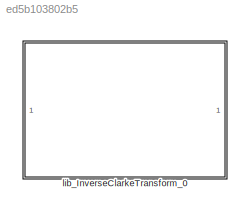
MODEL slx_ed5b103802b5
KIND library
CONFIG AbsTol = auto
CONFIG EnableMultiTasking = off
CONFIG FixedStep = auto
CONFIG MaxStep = auto
CONFIG MinStep = auto
CONFIG RelTol = 1e-3
CONFIG SampleTimeConstraint = Unconstrained
CONFIG SolverName = VariableStepAuto
CONFIG StartTime = 0.0
CONFIG StopTime = 10.0
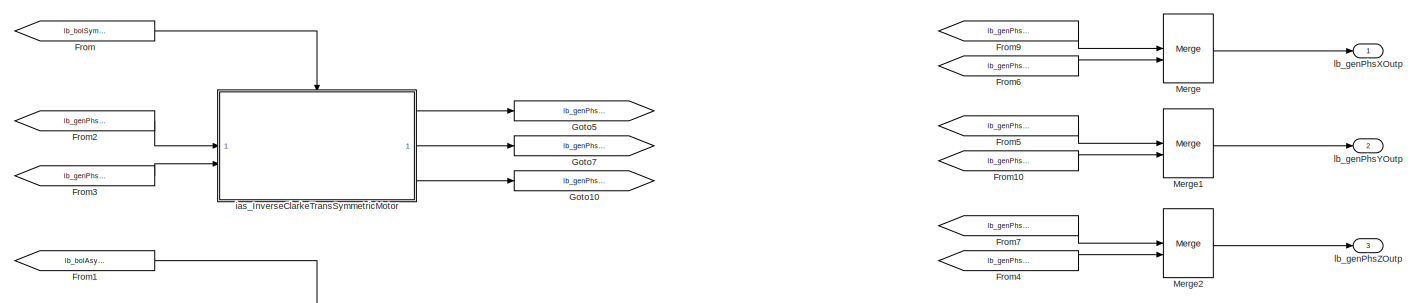
[diagram: lib_InverseClarkeTransform_0 - part 1/3, middle right region]
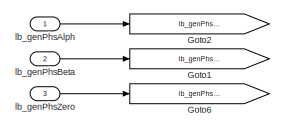
[diagram: lib_InverseClarkeTransform_0 - part 2/3, top left region]
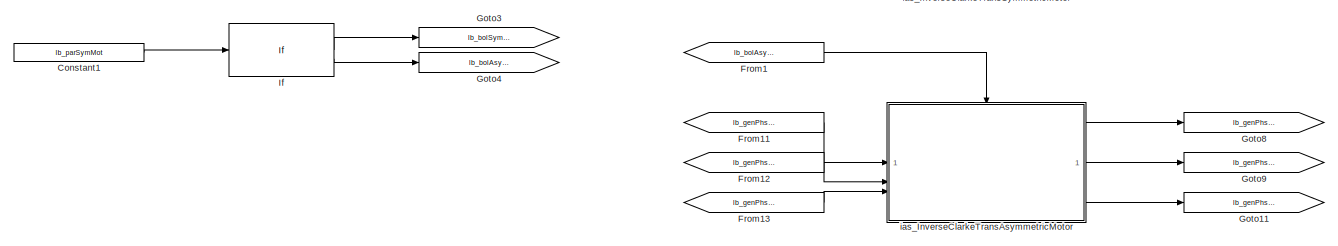
[diagram: lib_InverseClarkeTransform_0 - part 3/3, bottom center region]
BLOCK [SubSystem] lib_InverseClarkeTransform_0
  VariantControl = ClarkTransf_MIL_flo
BLOCK [Constant] lib_InverseClarkeTransform_0/Constant1
  OutDataTypeStr = boolean
  Value = lb_parSymMot
BLOCK [From] lib_InverseClarkeTransform_0/From
  GotoTag = lb_bolSymMot
BLOCK [From] lib_InverseClarkeTransform_0/From1
  GotoTag = lb_bolAsymMot
BLOCK [From] lib_InverseClarkeTransform_0/From10
  GotoTag = lb_genPhsYAsym
BLOCK [From] lib_InverseClarkeTransform_0/From11
  GotoTag = lb_genPhsAlph
BLOCK [From] lib_InverseClarkeTransform_0/From12
  GotoTag = lb_genPhsBeta
BLOCK [From] lib_InverseClarkeTransform_0/From13
  GotoTag = lb_genPhsZero
BLOCK [From] lib_InverseClarkeTransform_0/From2
  GotoTag = lb_genPhsAlph
BLOCK [From] lib_InverseClarkeTransform_0/From3
  GotoTag = lb_genPhsBeta
BLOCK [From] lib_InverseClarkeTransform_0/From4
  GotoTag = lb_genPhsZAsym
BLOCK [From] lib_InverseClarkeTransform_0/From5
  GotoTag = lb_genPhsYSym
BLOCK [From] lib_InverseClarkeTransform_0/From6
  GotoTag = lb_genPhsXAsym
BLOCK [From] lib_InverseClarkeTransform_0/From7
  GotoTag = lb_genPhsZSym
BLOCK [From] lib_InverseClarkeTransform_0/From9
  GotoTag = lb_genPhsXSym
BLOCK [Goto] lib_InverseClarkeTransform_0/Goto1
  GotoTag = lb_genPhsBeta
BLOCK [Goto] lib_InverseClarkeTransform_0/Goto10
  GotoTag = lb_genPhsZSym
BLOCK [Goto] lib_InverseClarkeTransform_0/Goto11
  GotoTag = lb_genPhsZAsym
BLOCK [Goto] lib_InverseClarkeTransform_0/Goto2
  GotoTag = lb_genPhsAlph
BLOCK [Goto] lib_InverseClarkeTransform_0/Goto3
  GotoTag = lb_bolSymMot
BLOCK [Goto] lib_InverseClarkeTransform_0/Goto4
  GotoTag = lb_bolAsymMot
BLOCK [Goto] lib_InverseClarkeTransform_0/Goto5
  GotoTag = lb_genPhsXSym
BLOCK [Goto] lib_InverseClarkeTransform_0/Goto6
  GotoTag = lb_genPhsZero
BLOCK [Goto] lib_InverseClarkeTransform_0/Goto7
  GotoTag = lb_genPhsYSym
BLOCK [Goto] lib_InverseClarkeTransform_0/Goto8
  GotoTag = lb_genPhsXAsym
BLOCK [Goto] lib_InverseClarkeTransform_0/Goto9
  GotoTag = lb_genPhsYAsym
BLOCK [If] lib_InverseClarkeTransform_0/If
  IfExpression = u1 == 0
BLOCK [Merge] lib_InverseClarkeTransform_0/Merge
BLOCK [Merge] lib_InverseClarkeTransform_0/Merge1
BLOCK [Merge] lib_InverseClarkeTransform_0/Merge2
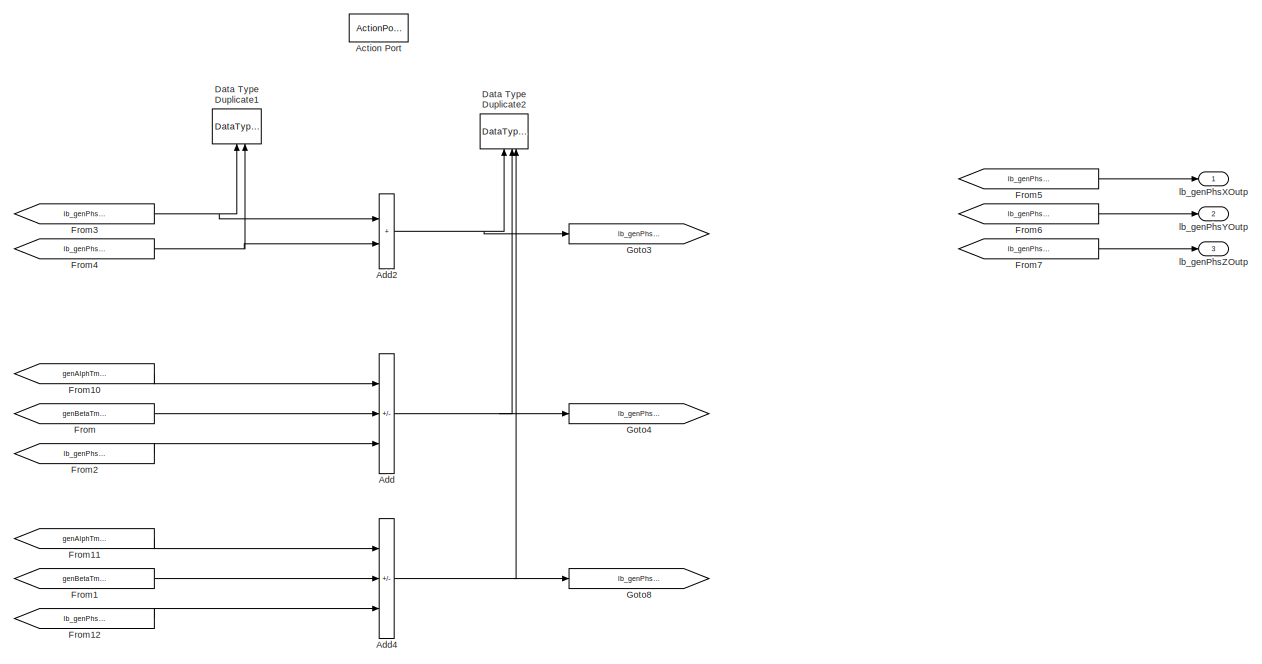
[diagram: lib_InverseClarkeTransform_0/ias_InverseClarkeTransAsymmetricMotor - part 1/2, right side, full height]
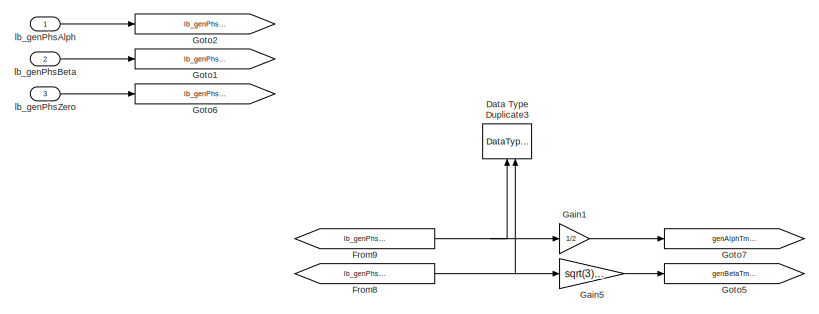
[diagram: lib_InverseClarkeTransform_0/ias_InverseClarkeTransAsymmetricMotor - part 2/2, middle left region]
BLOCK [SubSystem] lib_InverseClarkeTransform_0/ias_InverseClarkeTransAsymmetricMotor
  TreatAsAtomicUnit = on
BLOCK [ActionPort] lib_InverseClarkeTransform_0/ias_InverseClarkeTransAsymmetricMotor/Action Port
BLOCK [Sum] lib_InverseClarkeTransform_0/ias_InverseClarkeTransAsymmetricMotor/Add
  IconShape = rectangular
  InputSameDT = on
  Inputs = -++
  OutDataTypeStr = Inherit: Inherit via back propagation
  SaturateOnIntegerOverflow = on
BLOCK [Sum] lib_InverseClarkeTransform_0/ias_InverseClarkeTransAsymmetricMotor/Add2
  IconShape = rectangular
  InputSameDT = on
  OutDataTypeStr = Inherit: Inherit via back propagation
  SaturateOnIntegerOverflow = on
BLOCK [Sum] lib_InverseClarkeTransform_0/ias_InverseClarkeTransAsymmetricMotor/Add4
  IconShape = rectangular
  InputSameDT = on
  Inputs = --+
  OutDataTypeStr = Inherit: Inherit via back propagation
  SaturateOnIntegerOverflow = on
BLOCK [DataTypeDuplicate] lib_InverseClarkeTransform_0/ias_InverseClarkeTransAsymmetricMotor/Data Type Duplicate1
  NameLocation = right
BLOCK [DataTypeDuplicate] lib_InverseClarkeTransform_0/ias_InverseClarkeTransAsymmetricMotor/Data Type Duplicate2
  NameLocation = right
  NumInputPorts = 3
BLOCK [DataTypeDuplicate] lib_InverseClarkeTransform_0/ias_InverseClarkeTransAsymmetricMotor/Data Type Duplicate3
  NameLocation = right
BLOCK [From] lib_InverseClarkeTransform_0/ias_InverseClarkeTransAsymmetricMotor/From
  GotoTag = genBetaTmpr
BLOCK [From] lib_InverseClarkeTransform_0/ias_InverseClarkeTransAsymmetricMotor/From1
  GotoTag = genBetaTmpr
BLOCK [From] lib_InverseClarkeTransform_0/ias_InverseClarkeTransAsymmetricMotor/From10
  GotoTag = genAlphTmpr
BLOCK [From] lib_InverseClarkeTransform_0/ias_InverseClarkeTransAsymmetricMotor/From11
  GotoTag = genAlphTmpr
BLOCK [From] lib_InverseClarkeTransform_0/ias_InverseClarkeTransAsymmetricMotor/From12
  GotoTag = lb_genPhsZero
BLOCK [From] lib_InverseClarkeTransform_0/ias_InverseClarkeTransAsymmetricMotor/From2
  GotoTag = lb_genPhsZero
BLOCK [From] lib_InverseClarkeTransform_0/ias_InverseClarkeTransAsymmetricMotor/From3
  GotoTag = lb_genPhsAlph
BLOCK [From] lib_InverseClarkeTransform_0/ias_InverseClarkeTransAsymmetricMotor/From4
  GotoTag = lb_genPhsZero
BLOCK [From] lib_InverseClarkeTransform_0/ias_InverseClarkeTransAsymmetricMotor/From5
  GotoTag = lb_genPhsXOutp
BLOCK [From] lib_InverseClarkeTransform_0/ias_InverseClarkeTransAsymmetricMotor/From6
  GotoTag = lb_genPhsYOutp
BLOCK [From] lib_InverseClarkeTransform_0/ias_InverseClarkeTransAsymmetricMotor/From7
  GotoTag = lb_genPhsZOutp
BLOCK [From] lib_InverseClarkeTransform_0/ias_InverseClarkeTransAsymmetricMotor/From8
  GotoTag = lb_genPhsBeta
BLOCK [From] lib_InverseClarkeTransform_0/ias_InverseClarkeTransAsymmetricMotor/From9
  GotoTag = lb_genPhsAlph
BLOCK [Gain] lib_InverseClarkeTransform_0/ias_InverseClarkeTransAsymmetricMotor/Gain1
  Gain = 1/2
  OutDataTypeStr = Inherit: Inherit via back propagation
BLOCK [Gain] lib_InverseClarkeTransform_0/ias_InverseClarkeTransAsymmetricMotor/Gain5
  Gain = sqrt(3)/2
  OutDataTypeStr = Inherit: Inherit via back propagation
  ParamDataTypeStr = Inherit: Inherit from 'Gain'
BLOCK [Goto] lib_InverseClarkeTransform_0/ias_InverseClarkeTransAsymmetricMotor/Goto1
  GotoTag = lb_genPhsBeta
BLOCK [Goto] lib_InverseClarkeTransform_0/ias_InverseClarkeTransAsymmetricMotor/Goto2
  GotoTag = lb_genPhsAlph
BLOCK [Goto] lib_InverseClarkeTransform_0/ias_InverseClarkeTransAsymmetricMotor/Goto3
  GotoTag = lb_genPhsXOutp
BLOCK [Goto] lib_InverseClarkeTransform_0/ias_InverseClarkeTransAsymmetricMotor/Goto4
  GotoTag = lb_genPhsYOutp
BLOCK [Goto] lib_InverseClarkeTransform_0/ias_InverseClarkeTransAsymmetricMotor/Goto5
  GotoTag = genBetaTmpr
BLOCK [Goto] lib_InverseClarkeTransform_0/ias_InverseClarkeTransAsymmetricMotor/Goto6
  GotoTag = lb_genPhsZero
BLOCK [Goto] lib_InverseClarkeTransform_0/ias_InverseClarkeTransAsymmetricMotor/Goto7
  GotoTag = genAlphTmpr
BLOCK [Goto] lib_InverseClarkeTransform_0/ias_InverseClarkeTransAsymmetricMotor/Goto8
  GotoTag = lb_genPhsZOutp
BLOCK [Inport] lib_InverseClarkeTransform_0/ias_InverseClarkeTransAsymmetricMotor/lb_genPhsAlph
BLOCK [Inport] lib_InverseClarkeTransform_0/ias_InverseClarkeTransAsymmetricMotor/lb_genPhsBeta
  Port = 2
BLOCK [Outport] lib_InverseClarkeTransform_0/ias_InverseClarkeTransAsymmetricMotor/lb_genPhsXOutp
  VectorParamsAs1DForOutWhenUnconnected = off
BLOCK [Outport] lib_InverseClarkeTransform_0/ias_InverseClarkeTransAsymmetricMotor/lb_genPhsYOutp
  Port = 2
  VectorParamsAs1DForOutWhenUnconnected = off
BLOCK [Outport] lib_InverseClarkeTransform_0/ias_InverseClarkeTransAsymmetricMotor/lb_genPhsZOutp
  Port = 3
  VectorParamsAs1DForOutWhenUnconnected = off
BLOCK [Inport] lib_InverseClarkeTransform_0/ias_InverseClarkeTransAsymmetricMotor/lb_genPhsZero
  Port = 3
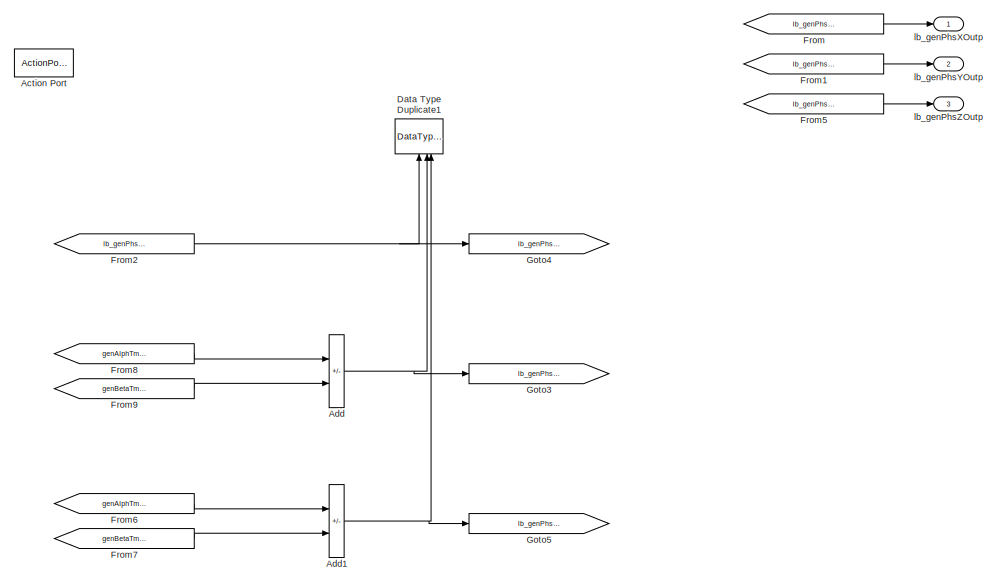
[diagram: lib_InverseClarkeTransform_0/ias_InverseClarkeTransSymmetricMotor - part 1/2, right side, full height]
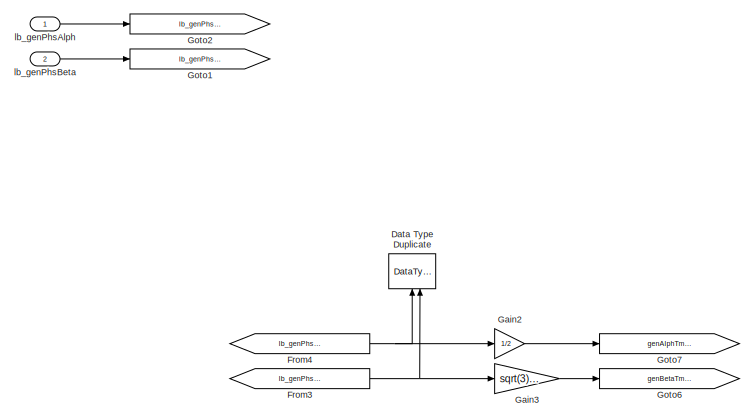
[diagram: lib_InverseClarkeTransform_0/ias_InverseClarkeTransSymmetricMotor - part 2/2, middle left region]
BLOCK [SubSystem] lib_InverseClarkeTransform_0/ias_InverseClarkeTransSymmetricMotor
  TreatAsAtomicUnit = on
BLOCK [ActionPort] lib_InverseClarkeTransform_0/ias_InverseClarkeTransSymmetricMotor/Action Port
BLOCK [Sum] lib_InverseClarkeTransform_0/ias_InverseClarkeTransSymmetricMotor/Add
  IconShape = rectangular
  Inputs = -+
  OutDataTypeStr = Inherit: Inherit via back propagation
BLOCK [Sum] lib_InverseClarkeTransform_0/ias_InverseClarkeTransSymmetricMotor/Add1
  IconShape = rectangular
  Inputs = --
  OutDataTypeStr = Inherit: Inherit via back propagation
BLOCK [DataTypeDuplicate] lib_InverseClarkeTransform_0/ias_InverseClarkeTransSymmetricMotor/Data Type Duplicate
  NameLocation = right
BLOCK [DataTypeDuplicate] lib_InverseClarkeTransform_0/ias_InverseClarkeTransSymmetricMotor/Data Type Duplicate1
  NameLocation = right
  NumInputPorts = 3
BLOCK [From] lib_InverseClarkeTransform_0/ias_InverseClarkeTransSymmetricMotor/From
  GotoTag = lb_genPhsXOutp
BLOCK [From] lib_InverseClarkeTransform_0/ias_InverseClarkeTransSymmetricMotor/From1
  GotoTag = lb_genPhsYOutp
BLOCK [From] lib_InverseClarkeTransform_0/ias_InverseClarkeTransSymmetricMotor/From2
  GotoTag = lb_genPhsAlph
BLOCK [From] lib_InverseClarkeTransform_0/ias_InverseClarkeTransSymmetricMotor/From3
  GotoTag = lb_genPhsBeta
BLOCK [From] lib_InverseClarkeTransform_0/ias_InverseClarkeTransSymmetricMotor/From4
  GotoTag = lb_genPhsAlph
BLOCK [From] lib_InverseClarkeTransform_0/ias_InverseClarkeTransSymmetricMotor/From5
  GotoTag = lb_genPhsZOutp
BLOCK [From] lib_InverseClarkeTransform_0/ias_InverseClarkeTransSymmetricMotor/From6
  GotoTag = genAlphTmpr
BLOCK [From] lib_InverseClarkeTransform_0/ias_InverseClarkeTransSymmetricMotor/From7
  GotoTag = genBetaTmpr
BLOCK [From] lib_InverseClarkeTransform_0/ias_InverseClarkeTransSymmetricMotor/From8
  GotoTag = genAlphTmpr
BLOCK [From] lib_InverseClarkeTransform_0/ias_InverseClarkeTransSymmetricMotor/From9
  GotoTag = genBetaTmpr
BLOCK [Gain] lib_InverseClarkeTransform_0/ias_InverseClarkeTransSymmetricMotor/Gain2
  Gain = 1/2
  OutDataTypeStr = Inherit: Inherit via back propagation
BLOCK [Gain] lib_InverseClarkeTransform_0/ias_InverseClarkeTransSymmetricMotor/Gain3
  Gain = sqrt(3)/2
  OutDataTypeStr = Inherit: Inherit via back propagation
  ParamDataTypeStr = Inherit: Inherit from 'Gain'
BLOCK [Goto] lib_InverseClarkeTransform_0/ias_InverseClarkeTransSymmetricMotor/Goto1
  GotoTag = lb_genPhsBeta
BLOCK [Goto] lib_InverseClarkeTransform_0/ias_InverseClarkeTransSymmetricMotor/Goto2
  GotoTag = lb_genPhsAlph
BLOCK [Goto] lib_InverseClarkeTransform_0/ias_InverseClarkeTransSymmetricMotor/Goto3
  GotoTag = lb_genPhsYOutp
BLOCK [Goto] lib_InverseClarkeTransform_0/ias_InverseClarkeTransSymmetricMotor/Goto4
  GotoTag = lb_genPhsXOutp
BLOCK [Goto] lib_InverseClarkeTransform_0/ias_InverseClarkeTransSymmetricMotor/Goto5
  GotoTag = lb_genPhsZOutp
BLOCK [Goto] lib_InverseClarkeTransform_0/ias_InverseClarkeTransSymmetricMotor/Goto6
  GotoTag = genBetaTmpr
BLOCK [Goto] lib_InverseClarkeTransform_0/ias_InverseClarkeTransSymmetricMotor/Goto7
  GotoTag = genAlphTmpr
BLOCK [Inport] lib_InverseClarkeTransform_0/ias_InverseClarkeTransSymmetricMotor/lb_genPhsAlph
BLOCK [Inport] lib_InverseClarkeTransform_0/ias_InverseClarkeTransSymmetricMotor/lb_genPhsBeta
  Port = 2
BLOCK [Outport] lib_InverseClarkeTransform_0/ias_InverseClarkeTransSymmetricMotor/lb_genPhsXOutp
  VectorParamsAs1DForOutWhenUnconnected = off
BLOCK [Outport] lib_InverseClarkeTransform_0/ias_InverseClarkeTransSymmetricMotor/lb_genPhsYOutp
  Port = 2
  VectorParamsAs1DForOutWhenUnconnected = off
BLOCK [Outport] lib_InverseClarkeTransform_0/ias_InverseClarkeTransSymmetricMotor/lb_genPhsZOutp
  Port = 3
  VectorParamsAs1DForOutWhenUnconnected = off
BLOCK [Inport] lib_InverseClarkeTransform_0/lb_genPhsAlph
BLOCK [Inport] lib_InverseClarkeTransform_0/lb_genPhsBeta
  Port = 2
BLOCK [Outport] lib_InverseClarkeTransform_0/lb_genPhsXOutp
  VectorParamsAs1DForOutWhenUnconnected = off
BLOCK [Outport] lib_InverseClarkeTransform_0/lb_genPhsYOutp
  Port = 2
  VectorParamsAs1DForOutWhenUnconnected = off
BLOCK [Outport] lib_InverseClarkeTransform_0/lb_genPhsZOutp
  Port = 3
  VectorParamsAs1DForOutWhenUnconnected = off
BLOCK [Inport] lib_InverseClarkeTransform_0/lb_genPhsZero
  Port = 3
LINE lib_InverseClarkeTransform_0/Constant1:1 -> lib_InverseClarkeTransform_0/If:1
LINE lib_InverseClarkeTransform_0/From10:1 -> lib_InverseClarkeTransform_0/Merge1:2
LINE lib_InverseClarkeTransform_0/From11:1 -> lib_InverseClarkeTransform_0/ias_InverseClarkeTransAsymmetricMotor:1
LINE lib_InverseClarkeTransform_0/From12:1 -> lib_InverseClarkeTransform_0/ias_InverseClarkeTransAsymmetricMotor:2
LINE lib_InverseClarkeTransform_0/From13:1 -> lib_InverseClarkeTransform_0/ias_InverseClarkeTransAsymmetricMotor:3
LINE lib_InverseClarkeTransform_0/From1:1 -> lib_InverseClarkeTransform_0/ias_InverseClarkeTransAsymmetricMotor:ifaction
LINE lib_InverseClarkeTransform_0/From2:1 -> lib_InverseClarkeTransform_0/ias_InverseClarkeTransSymmetricMotor:1
LINE lib_InverseClarkeTransform_0/From3:1 -> lib_InverseClarkeTransform_0/ias_InverseClarkeTransSymmetricMotor:2
LINE lib_InverseClarkeTransform_0/From4:1 -> lib_InverseClarkeTransform_0/Merge2:2
LINE lib_InverseClarkeTransform_0/From5:1 -> lib_InverseClarkeTransform_0/Merge1:1
LINE lib_InverseClarkeTransform_0/From6:1 -> lib_InverseClarkeTransform_0/Merge:2
LINE lib_InverseClarkeTransform_0/From7:1 -> lib_InverseClarkeTransform_0/Merge2:1
LINE lib_InverseClarkeTransform_0/From9:1 -> lib_InverseClarkeTransform_0/Merge:1
LINE lib_InverseClarkeTransform_0/From:1 -> lib_InverseClarkeTransform_0/ias_InverseClarkeTransSymmetricMotor:ifaction
LINE lib_InverseClarkeTransform_0/If:1 -> lib_InverseClarkeTransform_0/Goto3:1
LINE lib_InverseClarkeTransform_0/If:2 -> lib_InverseClarkeTransform_0/Goto4:1
LINE lib_InverseClarkeTransform_0/Merge1:1 -> lib_InverseClarkeTransform_0/lb_genPhsYOutp:1
LINE lib_InverseClarkeTransform_0/Merge2:1 -> lib_InverseClarkeTransform_0/lb_genPhsZOutp:1
LINE lib_InverseClarkeTransform_0/Merge:1 -> lib_InverseClarkeTransform_0/lb_genPhsXOutp:1
NET lib_InverseClarkeTransform_0/ias_InverseClarkeTransAsymmetricMotor/Add2:1 -> lib_InverseClarkeTransform_0/ias_InverseClarkeTransAsymmetricMotor/Data Type Duplicate2:1, lib_InverseClarkeTransform_0/ias_InverseClarkeTransAsymmetricMotor/Goto3:1
NET lib_InverseClarkeTransform_0/ias_InverseClarkeTransAsymmetricMotor/Add4:1 -> lib_InverseClarkeTransform_0/ias_InverseClarkeTransAsymmetricMotor/Data Type Duplicate2:3, lib_InverseClarkeTransform_0/ias_InverseClarkeTransAsymmetricMotor/Goto8:1
NET lib_InverseClarkeTransform_0/ias_InverseClarkeTransAsymmetricMotor/Add:1 -> lib_InverseClarkeTransform_0/ias_InverseClarkeTransAsymmetricMotor/Data Type Duplicate2:2, lib_InverseClarkeTransform_0/ias_InverseClarkeTransAsymmetricMotor/Goto4:1
LINE lib_InverseClarkeTransform_0/ias_InverseClarkeTransAsymmetricMotor/From10:1 -> lib_InverseClarkeTransform_0/ias_InverseClarkeTransAsymmetricMotor/Add:1
LINE lib_InverseClarkeTransform_0/ias_InverseClarkeTransAsymmetricMotor/From11:1 -> lib_InverseClarkeTransform_0/ias_InverseClarkeTransAsymmetricMotor/Add4:1
LINE lib_InverseClarkeTransform_0/ias_InverseClarkeTransAsymmetricMotor/From12:1 -> lib_InverseClarkeTransform_0/ias_InverseClarkeTransAsymmetricMotor/Add4:3
LINE lib_InverseClarkeTransform_0/ias_InverseClarkeTransAsymmetricMotor/From1:1 -> lib_InverseClarkeTransform_0/ias_InverseClarkeTransAsymmetricMotor/Add4:2
LINE lib_InverseClarkeTransform_0/ias_InverseClarkeTransAsymmetricMotor/From2:1 -> lib_InverseClarkeTransform_0/ias_InverseClarkeTransAsymmetricMotor/Add:3
NET lib_InverseClarkeTransform_0/ias_InverseClarkeTransAsymmetricMotor/From3:1 -> lib_InverseClarkeTransform_0/ias_InverseClarkeTransAsymmetricMotor/Add2:1, lib_InverseClarkeTransform_0/ias_InverseClarkeTransAsymmetricMotor/Data Type Duplicate1:1
NET lib_InverseClarkeTransform_0/ias_InverseClarkeTransAsymmetricMotor/From4:1 -> lib_InverseClarkeTransform_0/ias_InverseClarkeTransAsymmetricMotor/Add2:2, lib_InverseClarkeTransform_0/ias_InverseClarkeTransAsymmetricMotor/Data Type Duplicate1:2
LINE lib_InverseClarkeTransform_0/ias_InverseClarkeTransAsymmetricMotor/From5:1 -> lib_InverseClarkeTransform_0/ias_InverseClarkeTransAsymmetricMotor/lb_genPhsXOutp:1
LINE lib_InverseClarkeTransform_0/ias_InverseClarkeTransAsymmetricMotor/From6:1 -> lib_InverseClarkeTransform_0/ias_InverseClarkeTransAsymmetricMotor/lb_genPhsYOutp:1
LINE lib_InverseClarkeTransform_0/ias_InverseClarkeTransAsymmetricMotor/From7:1 -> lib_InverseClarkeTransform_0/ias_InverseClarkeTransAsymmetricMotor/lb_genPhsZOutp:1
NET lib_InverseClarkeTransform_0/ias_InverseClarkeTransAsymmetricMotor/From8:1 -> lib_InverseClarkeTransform_0/ias_InverseClarkeTransAsymmetricMotor/Data Type Duplicate3:2, lib_InverseClarkeTransform_0/ias_InverseClarkeTransAsymmetricMotor/Gain5:1
NET lib_InverseClarkeTransform_0/ias_InverseClarkeTransAsymmetricMotor/From9:1 -> lib_InverseClarkeTransform_0/ias_InverseClarkeTransAsymmetricMotor/Data Type Duplicate3:1, lib_InverseClarkeTransform_0/ias_InverseClarkeTransAsymmetricMotor/Gain1:1
LINE lib_InverseClarkeTransform_0/ias_InverseClarkeTransAsymmetricMotor/From:1 -> lib_InverseClarkeTransform_0/ias_InverseClarkeTransAsymmetricMotor/Add:2
LINE lib_InverseClarkeTransform_0/ias_InverseClarkeTransAsymmetricMotor/Gain1:1 -> lib_InverseClarkeTransform_0/ias_InverseClarkeTransAsymmetricMotor/Goto7:1
LINE lib_InverseClarkeTransform_0/ias_InverseClarkeTransAsymmetricMotor/Gain5:1 -> lib_InverseClarkeTransform_0/ias_InverseClarkeTransAsymmetricMotor/Goto5:1
LINE lib_InverseClarkeTransform_0/ias_InverseClarkeTransAsymmetricMotor/lb_genPhsAlph:1 -> lib_InverseClarkeTransform_0/ias_InverseClarkeTransAsymmetricMotor/Goto2:1
LINE lib_InverseClarkeTransform_0/ias_InverseClarkeTransAsymmetricMotor/lb_genPhsBeta:1 -> lib_InverseClarkeTransform_0/ias_InverseClarkeTransAsymmetricMotor/Goto1:1
LINE lib_InverseClarkeTransform_0/ias_InverseClarkeTransAsymmetricMotor/lb_genPhsZero:1 -> lib_InverseClarkeTransform_0/ias_InverseClarkeTransAsymmetricMotor/Goto6:1
LINE lib_InverseClarkeTransform_0/ias_InverseClarkeTransAsymmetricMotor:1 -> lib_InverseClarkeTransform_0/Goto8:1
LINE lib_InverseClarkeTransform_0/ias_InverseClarkeTransAsymmetricMotor:2 -> lib_InverseClarkeTransform_0/Goto9:1
LINE lib_InverseClarkeTransform_0/ias_InverseClarkeTransAsymmetricMotor:3 -> lib_InverseClarkeTransform_0/Goto11:1
NET lib_InverseClarkeTransform_0/ias_InverseClarkeTransSymmetricMotor/Add1:1 -> lib_InverseClarkeTransform_0/ias_InverseClarkeTransSymmetricMotor/Data Type Duplicate1:3, lib_InverseClarkeTransform_0/ias_InverseClarkeTransSymmetricMotor/Goto5:1
NET lib_InverseClarkeTransform_0/ias_InverseClarkeTransSymmetricMotor/Add:1 -> lib_InverseClarkeTransform_0/ias_InverseClarkeTransSymmetricMotor/Data Type Duplicate1:2, lib_InverseClarkeTransform_0/ias_InverseClarkeTransSymmetricMotor/Goto3:1
LINE lib_InverseClarkeTransform_0/ias_InverseClarkeTransSymmetricMotor/From1:1 -> lib_InverseClarkeTransform_0/ias_InverseClarkeTransSymmetricMotor/lb_genPhsYOutp:1
NET lib_InverseClarkeTransform_0/ias_InverseClarkeTransSymmetricMotor/From2:1 -> lib_InverseClarkeTransform_0/ias_InverseClarkeTransSymmetricMotor/Data Type Duplicate1:1, lib_InverseClarkeTransform_0/ias_InverseClarkeTransSymmetricMotor/Goto4:1
NET lib_InverseClarkeTransform_0/ias_InverseClarkeTransSymmetricMotor/From3:1 -> lib_InverseClarkeTransform_0/ias_InverseClarkeTransSymmetricMotor/Data Type Duplicate:2, lib_InverseClarkeTransform_0/ias_InverseClarkeTransSymmetricMotor/Gain3:1
NET lib_InverseClarkeTransform_0/ias_InverseClarkeTransSymmetricMotor/From4:1 -> lib_InverseClarkeTransform_0/ias_InverseClarkeTransSymmetricMotor/Data Type Duplicate:1, lib_InverseClarkeTransform_0/ias_InverseClarkeTransSymmetricMotor/Gain2:1
LINE lib_InverseClarkeTransform_0/ias_InverseClarkeTransSymmetricMotor/From5:1 -> lib_InverseClarkeTransform_0/ias_InverseClarkeTransSymmetricMotor/lb_genPhsZOutp:1
LINE lib_InverseClarkeTransform_0/ias_InverseClarkeTransSymmetricMotor/From6:1 -> lib_InverseClarkeTransform_0/ias_InverseClarkeTransSymmetricMotor/Add1:1
LINE lib_InverseClarkeTransform_0/ias_InverseClarkeTransSymmetricMotor/From7:1 -> lib_InverseClarkeTransform_0/ias_InverseClarkeTransSymmetricMotor/Add1:2
LINE lib_InverseClarkeTransform_0/ias_InverseClarkeTransSymmetricMotor/From8:1 -> lib_InverseClarkeTransform_0/ias_InverseClarkeTransSymmetricMotor/Add:1
LINE lib_InverseClarkeTransform_0/ias_InverseClarkeTransSymmetricMotor/From9:1 -> lib_InverseClarkeTransform_0/ias_InverseClarkeTransSymmetricMotor/Add:2
LINE lib_InverseClarkeTransform_0/ias_InverseClarkeTransSymmetricMotor/From:1 -> lib_InverseClarkeTransform_0/ias_InverseClarkeTransSymmetricMotor/lb_genPhsXOutp:1
LINE lib_InverseClarkeTransform_0/ias_InverseClarkeTransSymmetricMotor/Gain2:1 -> lib_InverseClarkeTransform_0/ias_InverseClarkeTransSymmetricMotor/Goto7:1
LINE lib_InverseClarkeTransform_0/ias_InverseClarkeTransSymmetricMotor/Gain3:1 -> lib_InverseClarkeTransform_0/ias_InverseClarkeTransSymmetricMotor/Goto6:1
LINE lib_InverseClarkeTransform_0/ias_InverseClarkeTransSymmetricMotor/lb_genPhsAlph:1 -> lib_InverseClarkeTransform_0/ias_InverseClarkeTransSymmetricMotor/Goto2:1
LINE lib_InverseClarkeTransform_0/ias_InverseClarkeTransSymmetricMotor/lb_genPhsBeta:1 -> lib_InverseClarkeTransform_0/ias_InverseClarkeTransSymmetricMotor/Goto1:1
LINE lib_InverseClarkeTransform_0/ias_InverseClarkeTransSymmetricMotor:1 -> lib_InverseClarkeTransform_0/Goto5:1
LINE lib_InverseClarkeTransform_0/ias_InverseClarkeTransSymmetricMotor:2 -> lib_InverseClarkeTransform_0/Goto7:1
LINE lib_InverseClarkeTransform_0/ias_InverseClarkeTransSymmetricMotor:3 -> lib_InverseClarkeTransform_0/Goto10:1
LINE lib_InverseClarkeTransform_0/lb_genPhsAlph:1 -> lib_InverseClarkeTransform_0/Goto2:1
LINE lib_InverseClarkeTransform_0/lb_genPhsBeta:1 -> lib_InverseClarkeTransform_0/Goto1:1
LINE lib_InverseClarkeTransform_0/lb_genPhsZero:1 -> lib_InverseClarkeTransform_0/Goto6:1
note: NET lines group one-source signal fan-out (src -> all destinations, sorted); 1:1 wires keep LINE
